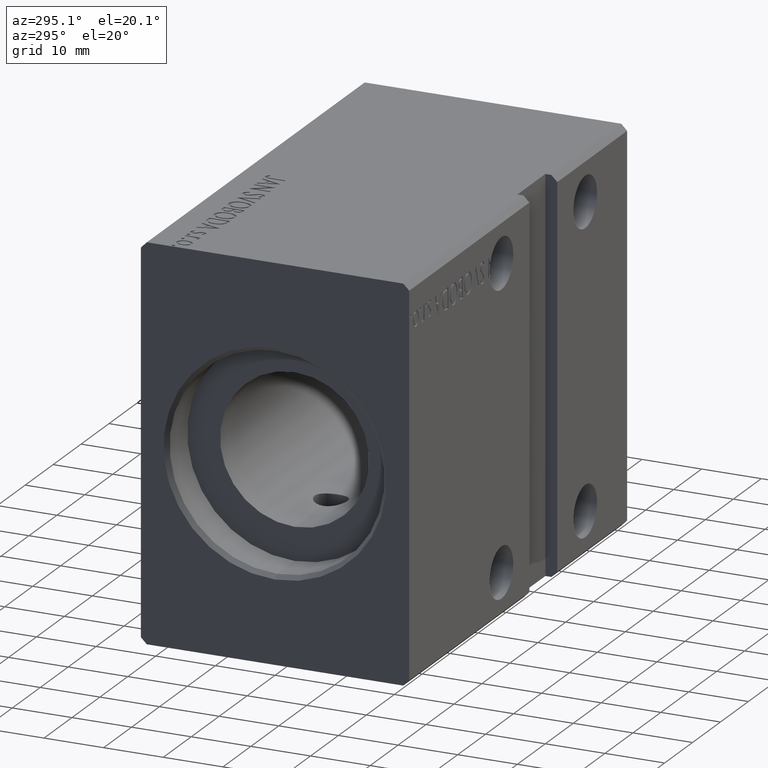
[diagram: clean part render]
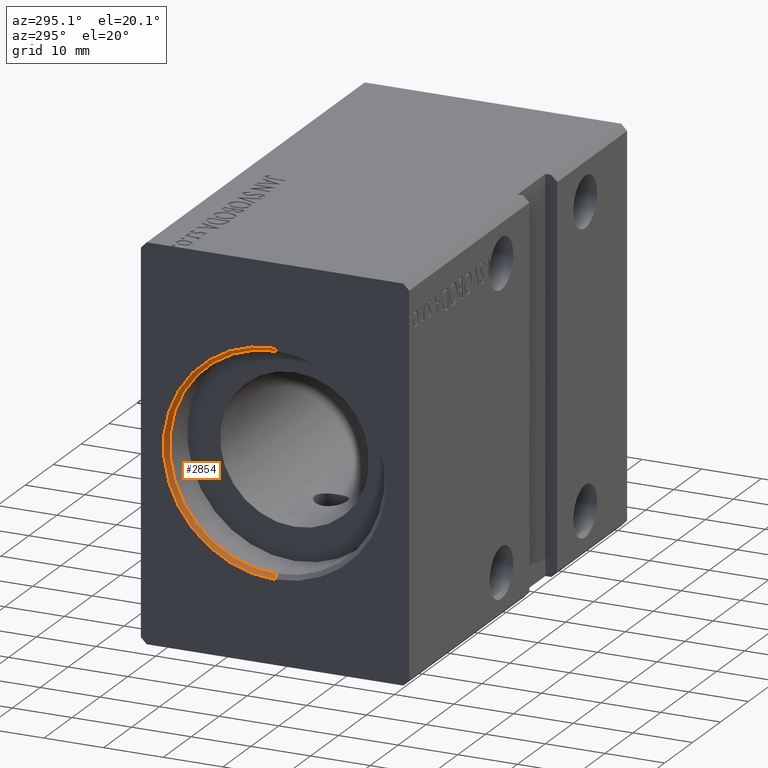
[diagram: same view with one face highlighted and labeled with its STEP entity id]
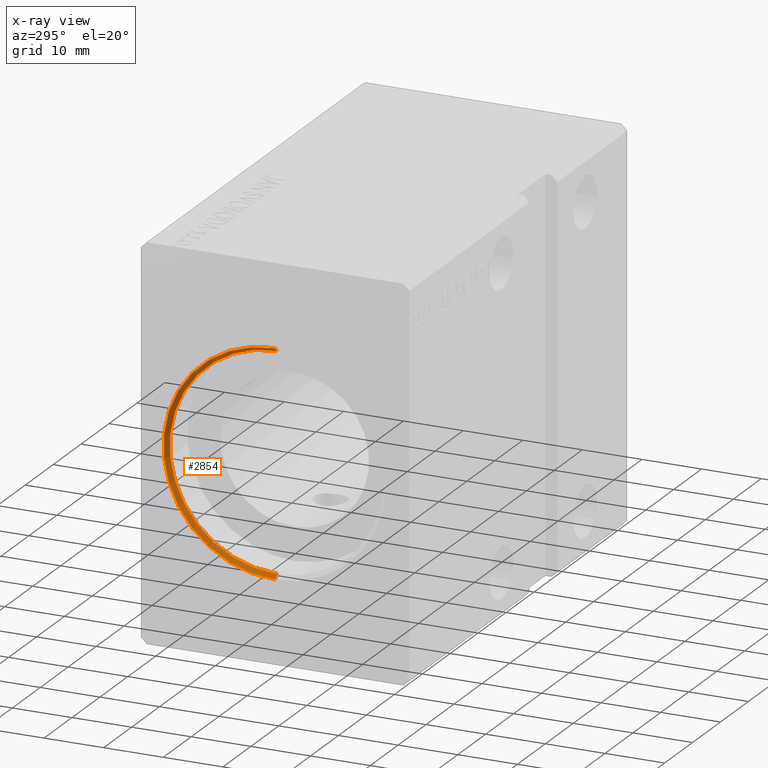
[diagram: x-ray of the same camera — body ghosted, the highlighted face saturated]
A machine part, auxiliary view. The second image highlights one B-rep face of the part: STEP entity #2854.
The next image is the same camera in x-ray: the body ghosted, the highlighted face saturated — about 0% of this face is hidden behind the body in this view.
In plain terms, the highlighted conical surface has half-angle 45 deg.
Its self-contained STEP definition (entity closure, byte-faithful):
#206 = EDGE_CURVE ( 'NONE', #39991, #12970, #7800, .T. ) ;
#449 = AXIS2_PLACEMENT_3D ( 'NONE', #36791, #27397, #8798 ) ;
#2380 = CARTESIAN_POINT ( 'NONE',  ( 0.7000000000000166089, 0.000000000000000000, 18.00000000000000000 ) ) ;
#2854 = ADVANCED_FACE ( 'NONE', ( #25011 ), #22513, .F. ) ;
#3957 = DIRECTION ( 'NONE',  ( -1.000000000000000000, 0.000000000000000000, 0.000000000000000000 ) ) ;
#6544 = CIRCLE ( 'NONE', #20223, 18.00000000000000000 ) ;
#6777 = CARTESIAN_POINT ( 'NONE',  ( 0.7000000000000166089, 2.204364238465235428E-15, -18.00000000000000000 ) ) ;
#6946 = CIRCLE ( 'NONE', #449, 18.70000000000002061 ) ;
#7800 = LINE ( 'NONE', #20464, #13035 ) ;
#8798 = DIRECTION ( 'NONE',  ( 0.000000000000000000, 0.000000000000000000, -1.000000000000000000 ) ) ;
#9045 = LINE ( 'NONE', #18645, #27540 ) ;
#11117 = VERTEX_POINT ( 'NONE', #2380 ) ;
#11706 = DIRECTION ( 'NONE',  ( -0.7071067811865441310, 0.000000000000000000, 0.7071067811865510144 ) ) ;
#12499 = EDGE_CURVE ( 'NONE', #12970, #38012, #6946, .T. ) ;
#12970 = VERTEX_POINT ( 'NONE', #35834 ) ;
#13035 = VECTOR ( 'NONE', #32931, 999.9999999999998863 ) ;
#18645 = CARTESIAN_POINT ( 'NONE',  ( 0.7000000000000166089, 0.000000000000000000, 18.00000000000000000 ) ) ;
#20223 = AXIS2_PLACEMENT_3D ( 'NONE', #21930, #3957, #34992 ) ;
#20464 = CARTESIAN_POINT ( 'NONE',  ( 0.7000000000000166089, 2.204364238465235428E-15, -18.00000000000000000 ) ) ;
#21930 = CARTESIAN_POINT ( 'NONE',  ( 0.7000000000000166089, 0.000000000000000000, 0.000000000000000000 ) ) ;
#22140 = DIRECTION ( 'NONE',  ( 0.000000000000000000, 0.000000000000000000, 1.000000000000000000 ) ) ;
#22513 = CONICAL_SURFACE ( 'NONE', #27752, 18.00000000000000000, 0.7853981633974532750 ) ;
#22919 = ORIENTED_EDGE ( 'NONE', *, *, #206, .F. ) ;
#23548 = CARTESIAN_POINT ( 'NONE',  ( 0.000000000000000000, 0.000000000000000000, 18.70000000000002061 ) ) ;
#25011 = FACE_OUTER_BOUND ( 'NONE', #30059, .T. ) ;
#27397 = DIRECTION ( 'NONE',  ( 1.000000000000000000, 0.000000000000000000, 0.000000000000000000 ) ) ;
#27540 = VECTOR ( 'NONE', #11706, 999.9999999999998863 ) ;
#27752 = AXIS2_PLACEMENT_3D ( 'NONE', #37667, #37464, #22140 ) ;
#28378 = ORIENTED_EDGE ( 'NONE', *, *, #29763, .F. ) ;
#28704 = ORIENTED_EDGE ( 'NONE', *, *, #12499, .F. ) ;
#29763 = EDGE_CURVE ( 'NONE', #11117, #39991, #6544, .T. ) ;
#30059 = EDGE_LOOP ( 'NONE', ( #22919, #28378, #39652, #28704 ) ) ;
#32931 = DIRECTION ( 'NONE',  ( -0.7071067811865441310, 8.659560562354978464E-17, -0.7071067811865510144 ) ) ;
#34992 = DIRECTION ( 'NONE',  ( 0.000000000000000000, 0.000000000000000000, -1.000000000000000000 ) ) ;
#35379 = EDGE_CURVE ( 'NONE', #11117, #38012, #9045, .T. ) ;
#35834 = CARTESIAN_POINT ( 'NONE',  ( 0.000000000000000000, 2.290089514405552871E-15, -18.70000000000002061 ) ) ;
#36791 = CARTESIAN_POINT ( 'NONE',  ( 0.000000000000000000, 0.000000000000000000, 0.000000000000000000 ) ) ;
#37464 = DIRECTION ( 'NONE',  ( -1.000000000000000000, 0.000000000000000000, 0.000000000000000000 ) ) ;
#37667 = CARTESIAN_POINT ( 'NONE',  ( 0.7000000000000166089, 0.000000000000000000, 0.000000000000000000 ) ) ;
#38012 = VERTEX_POINT ( 'NONE', #23548 ) ;
#39652 = ORIENTED_EDGE ( 'NONE', *, *, #35379, .T. ) ;
#39991 = VERTEX_POINT ( 'NONE', #6777 ) ;